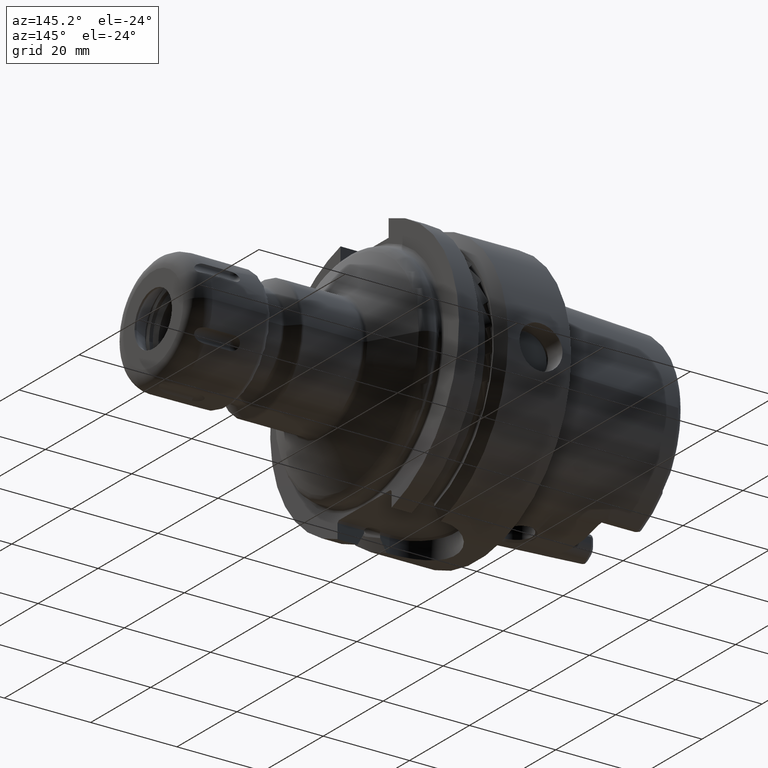
[diagram: clean part render]
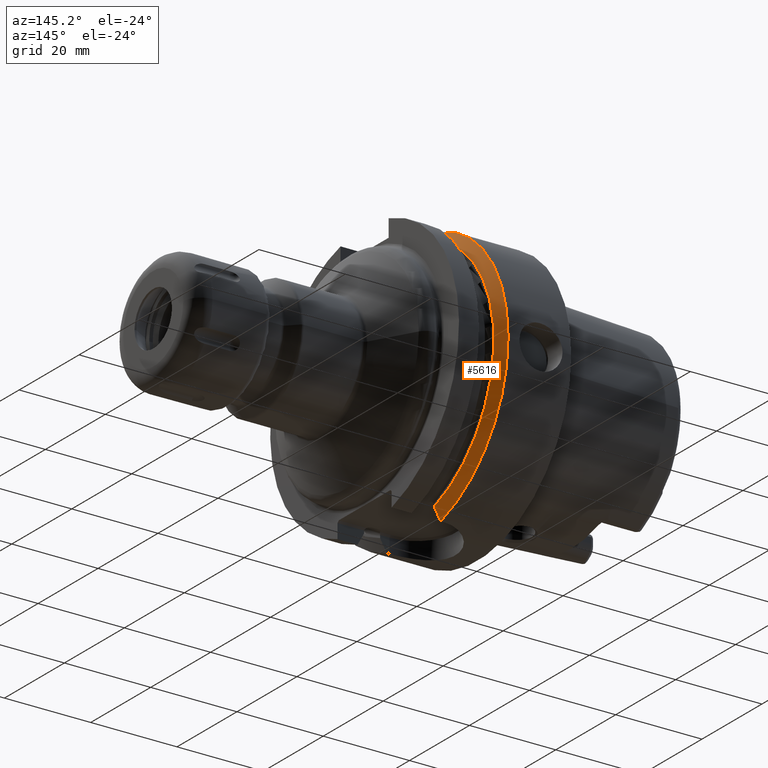
[diagram: same view with one face highlighted and labeled with its STEP entity id]
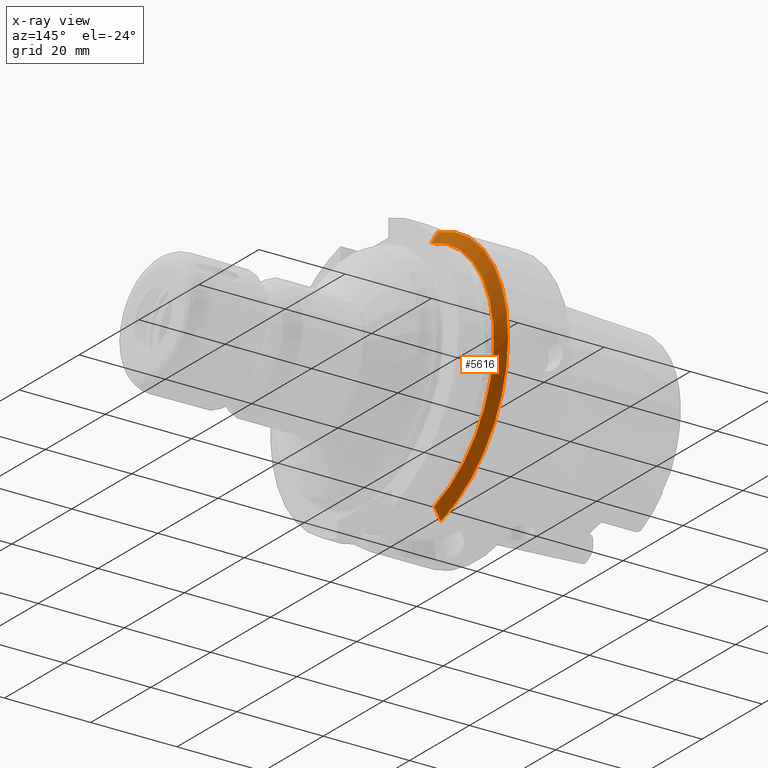
[diagram: x-ray of the same camera — body ghosted, the highlighted face saturated]
A machine part, auxiliary view. The second image highlights one B-rep face of the part: STEP entity #5616.
The next image is the same camera in x-ray: the body ghosted, the highlighted face saturated — about 3% of this face is hidden behind the body in this view.
In plain terms, the highlighted conical surface has half-angle 60 deg.
Its self-contained STEP definition (entity closure, byte-faithful):
#1141=CARTESIAN_POINT('',(1.462250092524E1,0.E0,0.E0));
#1142=DIRECTION('',(1.E0,0.E0,0.E0));
#1143=DIRECTION('',(0.E0,1.E0,0.E0));
#1144=AXIS2_PLACEMENT_3D('',#1141,#1142,#1143);
#1911=CARTESIAN_POINT('',(1.462250092524E1,0.E0,0.E0));
#1912=DIRECTION('',(1.E0,0.E0,0.E0));
#1913=DIRECTION('',(0.E0,2.862698412698E-1,-9.581490374568E-1));
#1914=AXIS2_PLACEMENT_3D('',#1911,#1912,#1913);
#2094=CARTESIAN_POINT('',(1.462250092524E1,9.0175E0,-3.018169467989E1));
#2095=CARTESIAN_POINT('',(1.479739328434E1,9.0175E0,-2.986554088755E1));
#2096=CARTESIAN_POINT('',(1.514187707501E1,9.0175E0,-2.924200119110E1));
#2097=CARTESIAN_POINT('',(1.564249057732E1,9.0175E0,-2.833337204728E1));
#2098=CARTESIAN_POINT('',(1.596590739145E1,9.0175E0,-2.774465116011E1));
#2099=CARTESIAN_POINT('',(1.6125E1,9.0175E0,-2.745461174016E1));
#2101=CARTESIAN_POINT('',(1.6125E1,0.E0,0.E0));
#2102=DIRECTION('',(1.E0,0.E0,0.E0));
#2103=DIRECTION('',(0.E0,3.120501867909E-1,-9.500656192726E-1));
#2104=AXIS2_PLACEMENT_3D('',#2101,#2102,#2103);
#2106=CARTESIAN_POINT('',(1.6125E1,8.0175E0,2.776311772483E1));
#2107=CARTESIAN_POINT('',(1.596543078404E1,8.0175E0,2.805079344433E1));
#2108=CARTESIAN_POINT('',(1.564137691625E1,8.0175E0,2.863431787984E1));
#2109=CARTESIAN_POINT('',(1.514073127837E1,8.0175E0,2.953380309393E1));
#2110=CARTESIAN_POINT('',(1.479690166789E1,8.0175E0,3.015023700722E1));
#2111=CARTESIAN_POINT('',(1.462250092524E1,8.0175E0,3.046259499370E1));
#3036=CARTESIAN_POINT('',(1.462250092524E1,3.15E1,0.E0));
#3037=VERTEX_POINT('',#3036);
#3138=CARTESIAN_POINT('',(1.462250092524E1,8.0175E0,3.046259499370E1));
#3139=VERTEX_POINT('',#3138);
#3144=CARTESIAN_POINT('',(1.6125E1,8.0175E0,2.776311772483E1));
#3146=VERTEX_POINT('',#3144);
#3162=CARTESIAN_POINT('',(1.462250092524E1,9.0175E0,-3.018169467989E1));
#3163=VERTEX_POINT('',#3162);
#3166=CARTESIAN_POINT('',(1.6125E1,9.0175E0,-2.745461174016E1));
#3168=VERTEX_POINT('',#3166);
#5604=CARTESIAN_POINT('',(1.537375046262E1,0.E0,0.E0));
#5605=DIRECTION('',(-1.E0,0.E0,0.E0));
#5606=DIRECTION('',(0.E0,1.E0,0.E0));
#5607=AXIS2_PLACEMENT_3D('',#5604,#5605,#5606);
#5608=CONICAL_SURFACE('',#5607,3.019879763210E1,6.E1);
#5609=ORIENTED_EDGE('',*,*,#4718,.T.);
#5610=ORIENTED_EDGE('',*,*,#5317,.T.);
#5611=ORIENTED_EDGE('',*,*,#5376,.T.);
#5612=ORIENTED_EDGE('',*,*,#4580,.F.);
#5613=ORIENTED_EDGE('',*,*,#5434,.F.);
#5614=EDGE_LOOP('',(#5609,#5610,#5611,#5612,#5613));
#5615=FACE_OUTER_BOUND('',#5614,.F.);
#5616=ADVANCED_FACE('',(#5615),#5608,.T.);
#1145=CIRCLE('',#1144,3.15E1);
#1915=CIRCLE('',#1914,3.15E1);
#2100=B_SPLINE_CURVE_WITH_KNOTS('',3,(#2094,#2095,#2096,#2097,#2098,#2099),
.UNSPECIFIED.,.F.,.F.,(4,1,1,4),(0.E0,3.333333333333E-1,6.666666666667E-1,1.E0),
.UNSPECIFIED.);
#2105=CIRCLE('',#2104,2.889759526419E1);
#2112=B_SPLINE_CURVE_WITH_KNOTS('',3,(#2106,#2107,#2108,#2109,#2110,#2111),
.UNSPECIFIED.,.F.,.F.,(4,1,1,4),(0.E0,3.333333333333E-1,6.666666666667E-1,1.E0),
.UNSPECIFIED.);
#4580=EDGE_CURVE('',#3037,#3139,#1145,.T.);
#4718=EDGE_CURVE('',#3163,#3168,#2100,.T.);
#5317=EDGE_CURVE('',#3168,#3146,#2105,.T.);
#5376=EDGE_CURVE('',#3146,#3139,#2112,.T.);
#5434=EDGE_CURVE('',#3163,#3037,#1915,.T.);